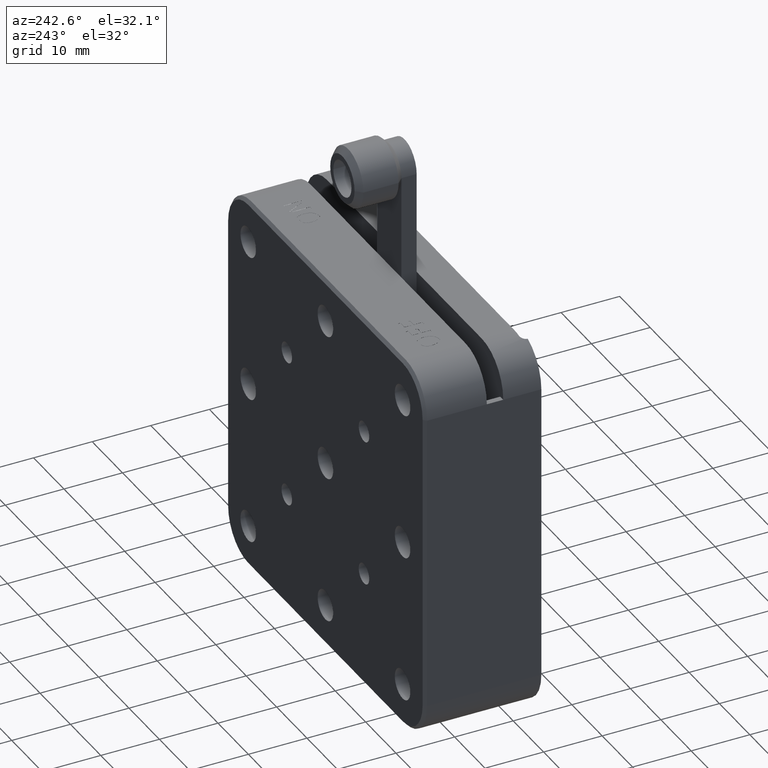
[diagram: clean part render]
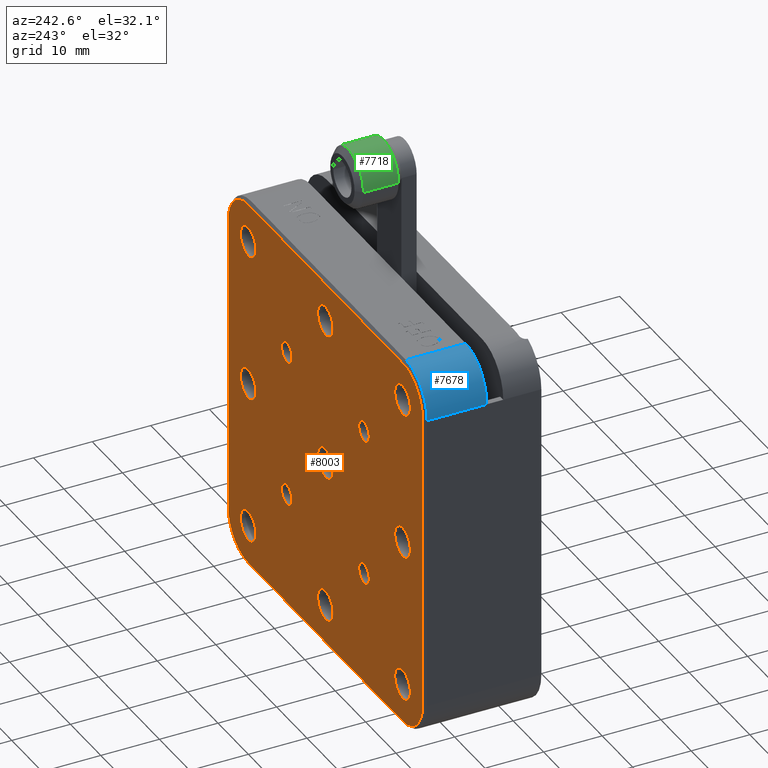
[diagram: same view with three faces highlighted in distinct colors, each labeled with its STEP entity id]
A machine part, auxiliary view with three faces highlighted in distinct colors.
Their STEP definitions:

[orange] entity #8003 — the highlighted planar face has unit normal (0, 1, 0).
#52 = EDGE_CURVE ( 'NONE', #6090, #90, #724, .T. ) ;
#71 = DIRECTION ( 'NONE',  ( 0.0000000000000000000, 0.0000000000000000000, 1.000000000000000000 ) ) ;
#80 = DIRECTION ( 'NONE',  ( -0.0000000000000000000, 1.000000000000000000, -0.0000000000000000000 ) ) ;
#90 = VERTEX_POINT ( 'NONE', #7771 ) ;
#121 = ORIENTED_EDGE ( 'NONE', *, *, #5553, .F. ) ;
#129 = CARTESIAN_POINT ( 'NONE',  ( -25.40000000000003800, 16.50000000000000000, -25.40000000000001600 ) ) ;
#146 = CARTESIAN_POINT ( 'NONE',  ( 31.99999999999997200, 16.50000000000000000, -25.50000000000001100 ) ) ;
#166 = DIRECTION ( 'NONE',  ( -1.000000000000000000, 0.0000000000000000000, 1.067522139062650300E-016 ) ) ;
#196 = AXIS2_PLACEMENT_3D ( 'NONE', #4144, #1546, #5966 ) ;
#198 = EDGE_CURVE ( 'NONE', #6858, #5558, #3324, .T. ) ;
#210 = AXIS2_PLACEMENT_3D ( 'NONE', #382, #1006, #3634 ) ;
#217 = EDGE_LOOP ( 'NONE', ( #738, #121 ) ) ;
#225 = CARTESIAN_POINT ( 'NONE',  ( -12.70000000000010400, 16.50000000000000000, 12.69999999999998200 ) ) ;
#274 = AXIS2_PLACEMENT_3D ( 'NONE', #225, #6002, #7257 ) ;
#279 = CARTESIAN_POINT ( 'NONE',  ( -32.00000000000008500, 16.50000000000000000, -25.50000000000000400 ) ) ;
#280 = DIRECTION ( 'NONE',  ( 0.0000000000000000000, 0.0000000000000000000, 1.000000000000000000 ) ) ;
#296 = CARTESIAN_POINT ( 'NONE',  ( 25.39999999999992000, 16.50000000000000000, 25.39999999999998100 ) ) ;
#328 = VERTEX_POINT ( 'NONE', #1307 ) ;
#364 = ORIENTED_EDGE ( 'NONE', *, *, #3986, .T. ) ;
#382 = CARTESIAN_POINT ( 'NONE',  ( -25.50000000000005300, 16.50000000000000000, -25.50000000000000400 ) ) ;
#446 = EDGE_CURVE ( 'NONE', #3851, #2931, #2193, .T. ) ;
#456 = ORIENTED_EDGE ( 'NONE', *, *, #5614, .F. ) ;
#467 = EDGE_CURVE ( 'NONE', #8148, #6967, #507, .T. ) ;
#486 = DIRECTION ( 'NONE',  ( -0.0000000000000000000, 1.000000000000000000, -0.0000000000000000000 ) ) ;
#507 = CIRCLE ( 'NONE', #7587, 2.552699999999998900 ) ;
#566 = AXIS2_PLACEMENT_3D ( 'NONE', #752, #3954, #3314 ) ;
#604 = FACE_BOUND ( 'NONE', #8067, .T. ) ;
#623 = CIRCLE ( 'NONE', #3479, 2.552699999999998000 ) ;
#628 = EDGE_CURVE ( 'NONE', #6967, #8148, #6264, .T. ) ;
#650 = DIRECTION ( 'NONE',  ( -0.0000000000000000000, 1.000000000000000000, -0.0000000000000000000 ) ) ;
#669 = DIRECTION ( 'NONE',  ( 0.0000000000000000000, 0.0000000000000000000, 1.000000000000000000 ) ) ;
#676 = VERTEX_POINT ( 'NONE', #6696 ) ;
#724 = CIRCLE ( 'NONE', #2908, 6.500000000000026600 ) ;
#738 = ORIENTED_EDGE ( 'NONE', *, *, #7808, .F. ) ;
#747 = DIRECTION ( 'NONE',  ( -0.0000000000000000000, 1.000000000000000000, -0.0000000000000000000 ) ) ;
#748 = AXIS2_PLACEMENT_3D ( 'NONE', #4109, #4751, #280 ) ;
#752 = CARTESIAN_POINT ( 'NONE',  ( -25.40000000000003800, 16.50000000000000000, -1.724140359010620200E-014 ) ) ;
#754 = CIRCLE ( 'NONE', #1783, 2.552699999999998000 ) ;
#817 = AXIS2_PLACEMENT_3D ( 'NONE', #6467, #3870, #669 ) ;
#839 = EDGE_CURVE ( 'NONE', #3858, #5742, #7034, .T. ) ;
#857 = DIRECTION ( 'NONE',  ( -0.0000000000000000000, 1.000000000000000000, -0.0000000000000000000 ) ) ;
#865 = VERTEX_POINT ( 'NONE', #2493 ) ;
#877 = CIRCLE ( 'NONE', #210, 6.500000000000026600 ) ;
#887 = EDGE_CURVE ( 'NONE', #4962, #6275, #3589, .T. ) ;
#891 = ORIENTED_EDGE ( 'NONE', *, *, #198, .F. ) ;
#897 = FACE_BOUND ( 'NONE', #2042, .T. ) ;
#899 = CARTESIAN_POINT ( 'NONE',  ( -25.40000000000003800, 16.50000000000000000, -1.724140359010620200E-014 ) ) ;
#902 = EDGE_CURVE ( 'NONE', #7638, #3858, #5284, .T. ) ;
#906 = CIRCLE ( 'NONE', #6653, 1.727199999999998100 ) ;
#921 = CARTESIAN_POINT ( 'NONE',  ( -25.50000000000005300, 16.50000000000000000, 32.00000000000003600 ) ) ;
#952 = EDGE_CURVE ( 'NONE', #7269, #3722, #6943, .T. ) ;
#1006 = DIRECTION ( 'NONE',  ( 0.0000000000000000000, 1.000000000000000000, 0.0000000000000000000 ) ) ;
#1037 = CIRCLE ( 'NONE', #2228, 2.552699999999998000 ) ;
#1051 = EDGE_CURVE ( 'NONE', #328, #3610, #5567, .T. ) ;
#1131 = DIRECTION ( 'NONE',  ( 0.0000000000000000000, 0.0000000000000000000, 1.000000000000000000 ) ) ;
#1173 = CARTESIAN_POINT ( 'NONE',  ( -12.70000000000010400, 16.50000000000000000, -14.42720000000001500 ) ) ;
#1192 = DIRECTION ( 'NONE',  ( -0.0000000000000000000, 1.000000000000000000, -0.0000000000000000000 ) ) ;
#1193 = AXIS2_PLACEMENT_3D ( 'NONE', #899, #5344, #3466 ) ;
#1212 = DIRECTION ( 'NONE',  ( -0.0000000000000000000, 1.000000000000000000, -0.0000000000000000000 ) ) ;
#1216 = DIRECTION ( 'NONE',  ( 0.0000000000000000000, 1.000000000000000000, 0.0000000000000000000 ) ) ;
#1248 = CARTESIAN_POINT ( 'NONE',  ( -25.50000000000005300, 16.50000000000000000, -32.00000000000002800 ) ) ;
#1307 = CARTESIAN_POINT ( 'NONE',  ( -5.984789395918149000E-014, 16.50000000000000000, -22.84730000000001800 ) ) ;
#1329 = AXIS2_PLACEMENT_3D ( 'NONE', #5118, #857, #7308 ) ;
#1345 = DIRECTION ( 'NONE',  ( 0.0000000000000000000, 0.0000000000000000000, 1.000000000000000000 ) ) ;
#1371 = CIRCLE ( 'NONE', #4855, 6.500000000000030200 ) ;
#1372 = ORIENTED_EDGE ( 'NONE', *, *, #3824, .T. ) ;
#1383 = CARTESIAN_POINT ( 'NONE',  ( 25.49999999999995000, 16.50000000000000000, 32.00000000000002800 ) ) ;
#1416 = EDGE_LOOP ( 'NONE', ( #5110, #6143 ) ) ;
#1420 = EDGE_CURVE ( 'NONE', #8116, #3532, #5275, .T. ) ;
#1439 = DIRECTION ( 'NONE',  ( 0.0000000000000000000, 0.0000000000000000000, 1.000000000000000000 ) ) ;
#1445 = AXIS2_PLACEMENT_3D ( 'NONE', #5084, #1212, #3811 ) ;
#1446 = EDGE_CURVE ( 'NONE', #3610, #328, #2270, .T. ) ;
#1452 = LINE ( 'NONE', #6629, #4632 ) ;
#1458 = CARTESIAN_POINT ( 'NONE',  ( 25.39999999999992000, 16.50000000000000000, -1.724140359010620200E-014 ) ) ;
#1492 = EDGE_CURVE ( 'NONE', #3969, #865, #8146, .T. ) ;
#1514 = FACE_BOUND ( 'NONE', #5134, .T. ) ;
#1546 = DIRECTION ( 'NONE',  ( -0.0000000000000000000, 1.000000000000000000, -0.0000000000000000000 ) ) ;
#1559 = VERTEX_POINT ( 'NONE', #4591 ) ;
#1588 = EDGE_CURVE ( 'NONE', #676, #1631, #6272, .T. ) ;
#1631 = VERTEX_POINT ( 'NONE', #7602 ) ;
#1700 = ORIENTED_EDGE ( 'NONE', *, *, #1446, .F. ) ;
#1777 = VERTEX_POINT ( 'NONE', #6481 ) ;
#1783 = AXIS2_PLACEMENT_3D ( 'NONE', #1458, #4626, #7106 ) ;
#1829 = DIRECTION ( 'NONE',  ( -0.0000000000000000000, 1.000000000000000000, -0.0000000000000000000 ) ) ;
#1873 = CARTESIAN_POINT ( 'NONE',  ( 25.49999999999995000, 16.50000000000000000, 25.49999999999999300 ) ) ;
#1884 = AXIS2_PLACEMENT_3D ( 'NONE', #8262, #650, #5099 ) ;
#1893 = EDGE_CURVE ( 'NONE', #7220, #4733, #7442, .T. ) ;
#1897 = VECTOR ( 'NONE', #5533, 1000.000000000000000 ) ;
#1908 = DIRECTION ( 'NONE',  ( 0.0000000000000000000, 0.0000000000000000000, 1.000000000000000000 ) ) ;
#1915 = FACE_BOUND ( 'NONE', #8169, .T. ) ;
#1932 = DIRECTION ( 'NONE',  ( -0.0000000000000000000, 1.000000000000000000, -0.0000000000000000000 ) ) ;
#1956 = CARTESIAN_POINT ( 'NONE',  ( -25.40000000000003800, 16.50000000000000000, -27.95270000000001400 ) ) ;
#1987 = CARTESIAN_POINT ( 'NONE',  ( -12.70000000000010400, 16.50000000000000000, 14.42719999999998000 ) ) ;
#2009 = CIRCLE ( 'NONE', #1193, 2.552699999999998000 ) ;
#2039 = DIRECTION ( 'NONE',  ( 0.0000000000000000000, 0.0000000000000000000, 1.000000000000000000 ) ) ;
#2042 = EDGE_LOOP ( 'NONE', ( #4523, #7229 ) ) ;
#2060 = CARTESIAN_POINT ( 'NONE',  ( 25.39999999999992000, 16.50000000000000000, 25.39999999999998100 ) ) ;
#2080 = DIRECTION ( 'NONE',  ( 0.0000000000000000000, 0.0000000000000000000, 1.000000000000000000 ) ) ;
#2129 = ORIENTED_EDGE ( 'NONE', *, *, #5904, .F. ) ;
#2143 = AXIS2_PLACEMENT_3D ( 'NONE', #6788, #2544, #3907 ) ;
#2193 = CIRCLE ( 'NONE', #7033, 1.727199999999998100 ) ;
#2213 = CIRCLE ( 'NONE', #7556, 2.552699999999998000 ) ;
#2220 = CIRCLE ( 'NONE', #817, 1.727199999999998100 ) ;
#2228 = AXIS2_PLACEMENT_3D ( 'NONE', #129, #6492, #71 ) ;
#2238 = CARTESIAN_POINT ( 'NONE',  ( 25.39999999999992000, 16.50000000000000000, -2.552700000000015300 ) ) ;
#2270 = CIRCLE ( 'NONE', #5685, 2.552699999999998000 ) ;
#2277 = FACE_BOUND ( 'NONE', #3369, .T. ) ;
#2396 = CARTESIAN_POINT ( 'NONE',  ( 25.39999999999992000, 16.50000000000000000, 22.84729999999998300 ) ) ;
#2402 = VERTEX_POINT ( 'NONE', #6717 ) ;
#2453 = ORIENTED_EDGE ( 'NONE', *, *, #3143, .T. ) ;
#2485 = ORIENTED_EDGE ( 'NONE', *, *, #952, .F. ) ;
#2493 = CARTESIAN_POINT ( 'NONE',  ( -25.40000000000003800, 16.50000000000000000, -2.552700000000015300 ) ) ;
#2544 = DIRECTION ( 'NONE',  ( -0.0000000000000000000, 1.000000000000000000, -0.0000000000000000000 ) ) ;
#2562 = ORIENTED_EDGE ( 'NONE', *, *, #5683, .F. ) ;
#2574 = CARTESIAN_POINT ( 'NONE',  ( 12.69999999999998500, 16.50000000000000000, 12.69999999999998200 ) ) ;
#2604 = AXIS2_PLACEMENT_3D ( 'NONE', #6878, #3070, #5599 ) ;
#2650 = CARTESIAN_POINT ( 'NONE',  ( -5.984789395918149000E-014, 16.50000000000000000, -1.724140359010620200E-014 ) ) ;
#2674 = LINE ( 'NONE', #3011, #1897 ) ;
#2742 = CARTESIAN_POINT ( 'NONE',  ( 31.99999999999997200, 16.50000000000000000, 25.49999999999999300 ) ) ;
#2765 = PLANE ( 'NONE',  #3345 ) ;
#2878 = CIRCLE ( 'NONE', #274, 1.727199999999998100 ) ;
#2908 = AXIS2_PLACEMENT_3D ( 'NONE', #4743, #5321, #1439 ) ;
#2931 = VERTEX_POINT ( 'NONE', #3751 ) ;
#2952 = DIRECTION ( 'NONE',  ( -0.0000000000000000000, 1.000000000000000000, -0.0000000000000000000 ) ) ;
#3011 = CARTESIAN_POINT ( 'NONE',  ( 31.99999999999997200, 16.50000000000000000, -25.50000000000001100 ) ) ;
#3070 = DIRECTION ( 'NONE',  ( -0.0000000000000000000, 1.000000000000000000, -0.0000000000000000000 ) ) ;
#3079 = CIRCLE ( 'NONE', #6798, 2.552699999999998000 ) ;
#3131 = DIRECTION ( 'NONE',  ( -0.0000000000000000000, 1.000000000000000000, -0.0000000000000000000 ) ) ;
#3142 = DIRECTION ( 'NONE',  ( 0.0000000000000000000, 0.0000000000000000000, 1.000000000000000000 ) ) ;
#3143 = EDGE_CURVE ( 'NONE', #6871, #5770, #877, .T. ) ;
#3191 = DIRECTION ( 'NONE',  ( 0.0000000000000000000, 0.0000000000000000000, 1.000000000000000000 ) ) ;
#3192 = CARTESIAN_POINT ( 'NONE',  ( -5.953527837076314500E-014, 16.50000000000000000, -2.552700000000016600 ) ) ;
#3199 = CARTESIAN_POINT ( 'NONE',  ( 12.69999999999998500, 16.50000000000000000, -12.70000000000001700 ) ) ;
#3261 = AXIS2_PLACEMENT_3D ( 'NONE', #296, #7210, #6027 ) ;
#3304 = ORIENTED_EDGE ( 'NONE', *, *, #1051, .F. ) ;
#3314 = DIRECTION ( 'NONE',  ( 0.0000000000000000000, 0.0000000000000000000, 1.000000000000000000 ) ) ;
#3324 = CIRCLE ( 'NONE', #4203, 1.727199999999998100 ) ;
#3328 = CARTESIAN_POINT ( 'NONE',  ( -25.40000000000003800, 16.50000000000000000, 2.552699999999980700 ) ) ;
#3341 = ORIENTED_EDGE ( 'NONE', *, *, #4313, .F. ) ;
#3345 = AXIS2_PLACEMENT_3D ( 'NONE', #7879, #4747, #6583 ) ;
#3369 = EDGE_LOOP ( 'NONE', ( #4221, #4186 ) ) ;
#3388 = DIRECTION ( 'NONE',  ( 0.0000000000000000000, 0.0000000000000000000, 1.000000000000000000 ) ) ;
#3466 = DIRECTION ( 'NONE',  ( 0.0000000000000000000, 0.0000000000000000000, 1.000000000000000000 ) ) ;
#3479 = AXIS2_PLACEMENT_3D ( 'NONE', #2060, #747, #2080 ) ;
#3532 = VERTEX_POINT ( 'NONE', #4082 ) ;
#3571 = CARTESIAN_POINT ( 'NONE',  ( 25.39999999999992000, 16.50000000000000000, -25.40000000000001600 ) ) ;
#3582 = ORIENTED_EDGE ( 'NONE', *, *, #902, .T. ) ;
#3589 = CIRCLE ( 'NONE', #5005, 2.552699999999998000 ) ;
#3610 = VERTEX_POINT ( 'NONE', #6144 ) ;
#3634 = DIRECTION ( 'NONE',  ( 0.0000000000000000000, 0.0000000000000000000, 1.000000000000000000 ) ) ;
#3660 = EDGE_CURVE ( 'NONE', #2931, #3851, #4555, .T. ) ;
#3677 = CARTESIAN_POINT ( 'NONE',  ( 25.39999999999992000, 16.50000000000000000, 27.95269999999997900 ) ) ;
#3688 = FACE_BOUND ( 'NONE', #6667, .T. ) ;
#3696 = CARTESIAN_POINT ( 'NONE',  ( -5.984789395918149000E-014, 16.50000000000000000, -25.40000000000001600 ) ) ;
#3722 = VERTEX_POINT ( 'NONE', #5328 ) ;
#3751 = CARTESIAN_POINT ( 'NONE',  ( -12.70000000000010400, 16.50000000000000000, -10.97280000000001900 ) ) ;
#3775 = CARTESIAN_POINT ( 'NONE',  ( -25.40000000000003800, 16.50000000000000000, 25.39999999999998100 ) ) ;
#3811 = DIRECTION ( 'NONE',  ( 0.0000000000000000000, 0.0000000000000000000, 1.000000000000000000 ) ) ;
#3816 = AXIS2_PLACEMENT_3D ( 'NONE', #2574, #6529, #3388 ) ;
#3824 = EDGE_CURVE ( 'NONE', #7000, #7638, #1371, .T. ) ;
#3851 = VERTEX_POINT ( 'NONE', #1173 ) ;
#3852 = ORIENTED_EDGE ( 'NONE', *, *, #1420, .F. ) ;
#3858 = VERTEX_POINT ( 'NONE', #1383 ) ;
#3870 = DIRECTION ( 'NONE',  ( -0.0000000000000000000, 1.000000000000000000, -0.0000000000000000000 ) ) ;
#3892 = FACE_BOUND ( 'NONE', #7837, .T. ) ;
#3907 = DIRECTION ( 'NONE',  ( 0.0000000000000000000, 0.0000000000000000000, 1.000000000000000000 ) ) ;
#3933 = LINE ( 'NONE', #6043, #4513 ) ;
#3942 = ORIENTED_EDGE ( 'NONE', *, *, #7148, .F. ) ;
#3954 = DIRECTION ( 'NONE',  ( -0.0000000000000000000, 1.000000000000000000, -0.0000000000000000000 ) ) ;
#3969 = VERTEX_POINT ( 'NONE', #3328 ) ;
#3986 = EDGE_CURVE ( 'NONE', #90, #6871, #3933, .T. ) ;
#4082 = CARTESIAN_POINT ( 'NONE',  ( -25.40000000000003800, 16.50000000000000000, 27.95269999999997900 ) ) ;
#4092 = CARTESIAN_POINT ( 'NONE',  ( -5.953527837076314500E-014, 16.50000000000000000, 22.84729999999998300 ) ) ;
#4109 = CARTESIAN_POINT ( 'NONE',  ( -5.984789395918149000E-014, 16.50000000000000000, 25.39999999999998100 ) ) ;
#4144 = CARTESIAN_POINT ( 'NONE',  ( -5.984789395918149000E-014, 16.50000000000000000, -1.724140359010620200E-014 ) ) ;
#4186 = ORIENTED_EDGE ( 'NONE', *, *, #446, .F. ) ;
#4203 = AXIS2_PLACEMENT_3D ( 'NONE', #4352, #1829, #4292 ) ;
#4221 = ORIENTED_EDGE ( 'NONE', *, *, #3660, .F. ) ;
#4292 = DIRECTION ( 'NONE',  ( 0.0000000000000000000, 0.0000000000000000000, 1.000000000000000000 ) ) ;
#4313 = EDGE_CURVE ( 'NONE', #3722, #7269, #3079, .T. ) ;
#4314 = CARTESIAN_POINT ( 'NONE',  ( 25.39999999999992000, 16.50000000000000000, -1.724140359010620200E-014 ) ) ;
#4352 = CARTESIAN_POINT ( 'NONE',  ( -12.70000000000010400, 16.50000000000000000, 12.69999999999998200 ) ) ;
#4356 = VERTEX_POINT ( 'NONE', #5646 ) ;
#4379 = CARTESIAN_POINT ( 'NONE',  ( -5.984789395918149000E-014, 16.50000000000000000, 2.552699999999981500 ) ) ;
#4394 = CIRCLE ( 'NONE', #3816, 1.727199999999998100 ) ;
#4513 = VECTOR ( 'NONE', #166, 1000.000000000000000 ) ;
#4517 = CARTESIAN_POINT ( 'NONE',  ( -12.70000000000010400, 16.50000000000000000, -12.70000000000001700 ) ) ;
#4523 = ORIENTED_EDGE ( 'NONE', *, *, #1492, .F. ) ;
#4536 = EDGE_CURVE ( 'NONE', #4356, #7276, #7976, .T. ) ;
#4555 = CIRCLE ( 'NONE', #5963, 1.727199999999998100 ) ;
#4576 = ORIENTED_EDGE ( 'NONE', *, *, #5002, .T. ) ;
#4591 = CARTESIAN_POINT ( 'NONE',  ( 12.69999999999998500, 16.50000000000000000, -10.97280000000001900 ) ) ;
#4626 = DIRECTION ( 'NONE',  ( -0.0000000000000000000, 1.000000000000000000, -0.0000000000000000000 ) ) ;
#4632 = VECTOR ( 'NONE', #7219, 1000.000000000000000 ) ;
#4699 = DIRECTION ( 'NONE',  ( 1.000000000000000000, 0.0000000000000000000, -1.067522139062650300E-016 ) ) ;
#4723 = CIRCLE ( 'NONE', #2143, 2.552699999999998000 ) ;
#4733 = VERTEX_POINT ( 'NONE', #2396 ) ;
#4743 = CARTESIAN_POINT ( 'NONE',  ( 25.49999999999995000, 16.50000000000000000, -25.50000000000001100 ) ) ;
#4747 = DIRECTION ( 'NONE',  ( 0.0000000000000000000, 1.000000000000000000, 0.0000000000000000000 ) ) ;
#4751 = DIRECTION ( 'NONE',  ( -0.0000000000000000000, 1.000000000000000000, -0.0000000000000000000 ) ) ;
#4855 = AXIS2_PLACEMENT_3D ( 'NONE', #5140, #6244, #4990 ) ;
#4916 = CARTESIAN_POINT ( 'NONE',  ( -5.984789395918149000E-014, 16.50000000000000000, 25.39999999999998100 ) ) ;
#4918 = EDGE_LOOP ( 'NONE', ( #6497, #456 ) ) ;
#4962 = VERTEX_POINT ( 'NONE', #5622 ) ;
#4990 = DIRECTION ( 'NONE',  ( 0.0000000000000000000, 0.0000000000000000000, 1.000000000000000000 ) ) ;
#5002 = EDGE_CURVE ( 'NONE', #5742, #6090, #2674, .T. ) ;
#5005 = AXIS2_PLACEMENT_3D ( 'NONE', #4314, #486, #1131 ) ;
#5057 = CARTESIAN_POINT ( 'NONE',  ( -32.00000000000008500, 16.50000000000000000, 25.50000000000000000 ) ) ;
#5084 = CARTESIAN_POINT ( 'NONE',  ( -25.40000000000003800, 16.50000000000000000, 25.39999999999998100 ) ) ;
#5099 = DIRECTION ( 'NONE',  ( 0.0000000000000000000, 0.0000000000000000000, 1.000000000000000000 ) ) ;
#5110 = ORIENTED_EDGE ( 'NONE', *, *, #1893, .F. ) ;
#5118 = CARTESIAN_POINT ( 'NONE',  ( 25.39999999999992000, 16.50000000000000000, -25.40000000000001600 ) ) ;
#5134 = EDGE_LOOP ( 'NONE', ( #5935, #5916 ) ) ;
#5140 = CARTESIAN_POINT ( 'NONE',  ( -25.50000000000005300, 16.50000000000000000, 25.50000000000000000 ) ) ;
#5177 = FACE_BOUND ( 'NONE', #217, .T. ) ;
#5240 = EDGE_LOOP ( 'NONE', ( #2129, #3852 ) ) ;
#5275 = CIRCLE ( 'NONE', #1445, 2.552699999999998000 ) ;
#5283 = CARTESIAN_POINT ( 'NONE',  ( 12.69999999999998500, 16.50000000000000000, 14.42719999999998000 ) ) ;
#5284 = LINE ( 'NONE', #8118, #6069 ) ;
#5321 = DIRECTION ( 'NONE',  ( 0.0000000000000000000, 1.000000000000000000, 0.0000000000000000000 ) ) ;
#5328 = CARTESIAN_POINT ( 'NONE',  ( -5.984789395918149000E-014, 16.50000000000000000, 27.95269999999997900 ) ) ;
#5344 = DIRECTION ( 'NONE',  ( -0.0000000000000000000, 1.000000000000000000, -0.0000000000000000000 ) ) ;
#5361 = FACE_BOUND ( 'NONE', #5240, .T. ) ;
#5484 = DIRECTION ( 'NONE',  ( -0.0000000000000000000, 1.000000000000000000, -0.0000000000000000000 ) ) ;
#5515 = EDGE_LOOP ( 'NONE', ( #8170, #364, #2453, #6867, #1372, #3582, #5771, #4576 ) ) ;
#5533 = DIRECTION ( 'NONE',  ( 0.0000000000000000000, 0.0000000000000000000, -1.000000000000000000 ) ) ;
#5544 = ORIENTED_EDGE ( 'NONE', *, *, #1588, .F. ) ;
#5548 = EDGE_LOOP ( 'NONE', ( #3304, #1700 ) ) ;
#5553 = EDGE_CURVE ( 'NONE', #2402, #1559, #2220, .T. ) ;
#5558 = VERTEX_POINT ( 'NONE', #1987 ) ;
#5563 = FACE_OUTER_BOUND ( 'NONE', #5515, .T. ) ;
#5567 = CIRCLE ( 'NONE', #2604, 2.552699999999998000 ) ;
#5599 = DIRECTION ( 'NONE',  ( 0.0000000000000000000, 0.0000000000000000000, 1.000000000000000000 ) ) ;
#5614 = EDGE_CURVE ( 'NONE', #6275, #4962, #754, .T. ) ;
#5622 = CARTESIAN_POINT ( 'NONE',  ( 25.39999999999992000, 16.50000000000000000, 2.552699999999980700 ) ) ;
#5630 = DIRECTION ( 'NONE',  ( -0.0000000000000000000, 1.000000000000000000, -0.0000000000000000000 ) ) ;
#5646 = CARTESIAN_POINT ( 'NONE',  ( 12.69999999999998500, 16.50000000000000000, 10.97279999999998300 ) ) ;
#5683 = EDGE_CURVE ( 'NONE', #7081, #1777, #1037, .T. ) ;
#5685 = AXIS2_PLACEMENT_3D ( 'NONE', #3696, #5630, #8115 ) ;
#5742 = VERTEX_POINT ( 'NONE', #2742 ) ;
#5751 = ORIENTED_EDGE ( 'NONE', *, *, #628, .F. ) ;
#5755 = EDGE_CURVE ( 'NONE', #5770, #7000, #1452, .T. ) ;
#5770 = VERTEX_POINT ( 'NONE', #279 ) ;
#5771 = ORIENTED_EDGE ( 'NONE', *, *, #839, .T. ) ;
#5800 = CARTESIAN_POINT ( 'NONE',  ( -12.70000000000010400, 16.50000000000000000, -12.70000000000001700 ) ) ;
#5829 = DIRECTION ( 'NONE',  ( -0.0000000000000000000, 1.000000000000000000, -0.0000000000000000000 ) ) ;
#5904 = EDGE_CURVE ( 'NONE', #3532, #8116, #2213, .T. ) ;
#5916 = ORIENTED_EDGE ( 'NONE', *, *, #4536, .F. ) ;
#5935 = ORIENTED_EDGE ( 'NONE', *, *, #7526, .F. ) ;
#5963 = AXIS2_PLACEMENT_3D ( 'NONE', #5800, #5829, #2039 ) ;
#5965 = FACE_BOUND ( 'NONE', #6581, .T. ) ;
#5966 = DIRECTION ( 'NONE',  ( 0.0000000000000000000, 0.0000000000000000000, 1.000000000000000000 ) ) ;
#6002 = DIRECTION ( 'NONE',  ( -0.0000000000000000000, 1.000000000000000000, -0.0000000000000000000 ) ) ;
#6027 = DIRECTION ( 'NONE',  ( 0.0000000000000000000, 0.0000000000000000000, 1.000000000000000000 ) ) ;
#6043 = CARTESIAN_POINT ( 'NONE',  ( -25.50000000000005300, 16.50000000000000000, -32.00000000000002800 ) ) ;
#6069 = VECTOR ( 'NONE', #4699, 1000.000000000000000 ) ;
#6073 = CIRCLE ( 'NONE', #7614, 2.552699999999998000 ) ;
#6090 = VERTEX_POINT ( 'NONE', #146 ) ;
#6115 = DIRECTION ( 'NONE',  ( 0.0000000000000000000, 0.0000000000000000000, 1.000000000000000000 ) ) ;
#6143 = ORIENTED_EDGE ( 'NONE', *, *, #6646, .F. ) ;
#6144 = CARTESIAN_POINT ( 'NONE',  ( -5.953527837076314500E-014, 16.50000000000000000, -27.95270000000001400 ) ) ;
#6150 = FACE_BOUND ( 'NONE', #1416, .T. ) ;
#6244 = DIRECTION ( 'NONE',  ( 0.0000000000000000000, 1.000000000000000000, 0.0000000000000000000 ) ) ;
#6259 = AXIS2_PLACEMENT_3D ( 'NONE', #1873, #1216, #8152 ) ;
#6264 = CIRCLE ( 'NONE', #196, 2.552699999999998900 ) ;
#6272 = CIRCLE ( 'NONE', #1329, 2.552699999999998000 ) ;
#6275 = VERTEX_POINT ( 'NONE', #2238 ) ;
#6331 = EDGE_CURVE ( 'NONE', #1777, #7081, #4723, .T. ) ;
#6365 = FACE_BOUND ( 'NONE', #4918, .T. ) ;
#6467 = CARTESIAN_POINT ( 'NONE',  ( 12.69999999999998500, 16.50000000000000000, -12.70000000000001700 ) ) ;
#6481 = CARTESIAN_POINT ( 'NONE',  ( -25.40000000000003800, 16.50000000000000000, -22.84730000000001800 ) ) ;
#6492 = DIRECTION ( 'NONE',  ( -0.0000000000000000000, 1.000000000000000000, -0.0000000000000000000 ) ) ;
#6497 = ORIENTED_EDGE ( 'NONE', *, *, #887, .F. ) ;
#6529 = DIRECTION ( 'NONE',  ( -0.0000000000000000000, 1.000000000000000000, -0.0000000000000000000 ) ) ;
#6581 = EDGE_LOOP ( 'NONE', ( #3341, #2485 ) ) ;
#6583 = DIRECTION ( 'NONE',  ( 0.0000000000000000000, -0.0000000000000000000, 1.000000000000000000 ) ) ;
#6629 = CARTESIAN_POINT ( 'NONE',  ( -32.00000000000008500, 16.50000000000000000, 25.50000000000000000 ) ) ;
#6646 = EDGE_CURVE ( 'NONE', #4733, #7220, #623, .T. ) ;
#6653 = AXIS2_PLACEMENT_3D ( 'NONE', #3199, #1932, #3142 ) ;
#6667 = EDGE_LOOP ( 'NONE', ( #3942, #5544 ) ) ;
#6696 = CARTESIAN_POINT ( 'NONE',  ( 25.39999999999992000, 16.50000000000000000, -27.95270000000001400 ) ) ;
#6714 = ORIENTED_EDGE ( 'NONE', *, *, #467, .F. ) ;
#6717 = CARTESIAN_POINT ( 'NONE',  ( 12.69999999999998500, 16.50000000000000000, -14.42720000000001500 ) ) ;
#6788 = CARTESIAN_POINT ( 'NONE',  ( -25.40000000000003800, 16.50000000000000000, -25.40000000000001600 ) ) ;
#6798 = AXIS2_PLACEMENT_3D ( 'NONE', #4916, #5484, #3191 ) ;
#6858 = VERTEX_POINT ( 'NONE', #8222 ) ;
#6867 = ORIENTED_EDGE ( 'NONE', *, *, #5755, .T. ) ;
#6871 = VERTEX_POINT ( 'NONE', #1248 ) ;
#6878 = CARTESIAN_POINT ( 'NONE',  ( -5.984789395918149000E-014, 16.50000000000000000, -25.40000000000001600 ) ) ;
#6943 = CIRCLE ( 'NONE', #748, 2.552699999999998000 ) ;
#6967 = VERTEX_POINT ( 'NONE', #3192 ) ;
#7000 = VERTEX_POINT ( 'NONE', #5057 ) ;
#7033 = AXIS2_PLACEMENT_3D ( 'NONE', #4517, #1192, #1908 ) ;
#7034 = CIRCLE ( 'NONE', #6259, 6.500000000000023100 ) ;
#7081 = VERTEX_POINT ( 'NONE', #1956 ) ;
#7106 = DIRECTION ( 'NONE',  ( 0.0000000000000000000, 0.0000000000000000000, 1.000000000000000000 ) ) ;
#7148 = EDGE_CURVE ( 'NONE', #1631, #676, #6073, .T. ) ;
#7210 = DIRECTION ( 'NONE',  ( -0.0000000000000000000, 1.000000000000000000, -0.0000000000000000000 ) ) ;
#7219 = DIRECTION ( 'NONE',  ( 0.0000000000000000000, 0.0000000000000000000, 1.000000000000000000 ) ) ;
#7220 = VERTEX_POINT ( 'NONE', #3677 ) ;
#7229 = ORIENTED_EDGE ( 'NONE', *, *, #7978, .F. ) ;
#7244 = ORIENTED_EDGE ( 'NONE', *, *, #7677, .F. ) ;
#7257 = DIRECTION ( 'NONE',  ( 0.0000000000000000000, 0.0000000000000000000, 1.000000000000000000 ) ) ;
#7269 = VERTEX_POINT ( 'NONE', #4092 ) ;
#7276 = VERTEX_POINT ( 'NONE', #5283 ) ;
#7308 = DIRECTION ( 'NONE',  ( 0.0000000000000000000, 0.0000000000000000000, 1.000000000000000000 ) ) ;
#7442 = CIRCLE ( 'NONE', #3261, 2.552699999999998000 ) ;
#7526 = EDGE_CURVE ( 'NONE', #7276, #4356, #4394, .T. ) ;
#7556 = AXIS2_PLACEMENT_3D ( 'NONE', #3775, #3131, #8211 ) ;
#7587 = AXIS2_PLACEMENT_3D ( 'NONE', #2650, #80, #1345 ) ;
#7602 = CARTESIAN_POINT ( 'NONE',  ( 25.39999999999992000, 16.50000000000000000, -22.84730000000001800 ) ) ;
#7614 = AXIS2_PLACEMENT_3D ( 'NONE', #3571, #2952, #6115 ) ;
#7638 = VERTEX_POINT ( 'NONE', #921 ) ;
#7677 = EDGE_CURVE ( 'NONE', #5558, #6858, #2878, .T. ) ;
#7755 = ORIENTED_EDGE ( 'NONE', *, *, #6331, .F. ) ;
#7771 = CARTESIAN_POINT ( 'NONE',  ( 25.49999999999995000, 16.50000000000000000, -32.00000000000003600 ) ) ;
#7808 = EDGE_CURVE ( 'NONE', #1559, #2402, #906, .T. ) ;
#7837 = EDGE_LOOP ( 'NONE', ( #7244, #891 ) ) ;
#7879 = CARTESIAN_POINT ( 'NONE',  ( -5.984789395918149000E-014, 16.50000000000000000, -1.724140359010620200E-014 ) ) ;
#7976 = CIRCLE ( 'NONE', #1884, 1.727199999999998100 ) ;
#7978 = EDGE_CURVE ( 'NONE', #865, #3969, #2009, .T. ) ;
#8003 = ADVANCED_FACE ( 'NONE', ( #5563, #2277, #5177, #1514, #3892, #1915, #8042, #897, #5965, #5361, #6150, #6365, #3688, #604 ), #2765, .T. ) ;
#8022 = CARTESIAN_POINT ( 'NONE',  ( -25.40000000000003800, 16.50000000000000000, 22.84729999999998300 ) ) ;
#8042 = FACE_BOUND ( 'NONE', #5548, .T. ) ;
#8067 = EDGE_LOOP ( 'NONE', ( #6714, #5751 ) ) ;
#8115 = DIRECTION ( 'NONE',  ( 0.0000000000000000000, 0.0000000000000000000, 1.000000000000000000 ) ) ;
#8116 = VERTEX_POINT ( 'NONE', #8022 ) ;
#8118 = CARTESIAN_POINT ( 'NONE',  ( 25.49999999999995000, 16.50000000000000000, 32.00000000000002800 ) ) ;
#8146 = CIRCLE ( 'NONE', #566, 2.552699999999998000 ) ;
#8148 = VERTEX_POINT ( 'NONE', #4379 ) ;
#8152 = DIRECTION ( 'NONE',  ( 0.0000000000000000000, 0.0000000000000000000, 1.000000000000000000 ) ) ;
#8169 = EDGE_LOOP ( 'NONE', ( #7755, #2562 ) ) ;
#8170 = ORIENTED_EDGE ( 'NONE', *, *, #52, .T. ) ;
#8211 = DIRECTION ( 'NONE',  ( 0.0000000000000000000, 0.0000000000000000000, 1.000000000000000000 ) ) ;
#8222 = CARTESIAN_POINT ( 'NONE',  ( -12.70000000000010400, 16.50000000000000000, 10.97279999999998300 ) ) ;
#8262 = CARTESIAN_POINT ( 'NONE',  ( 12.69999999999998500, 16.50000000000000000, 12.69999999999998200 ) ) ;

[blue] entity #7678 — the highlighted cylindrical surface (partial cylindrical patch) has radius 7 mm, axis along (0, -1, 0).
#57 = VERTEX_POINT ( 'NONE', #7156 ) ;
#245 = CARTESIAN_POINT ( 'NONE',  ( -25.50000000000005300, 16.50000000000000000, 25.50000000000000000 ) ) ;
#805 = VERTEX_POINT ( 'NONE', #1180 ) ;
#999 = DIRECTION ( 'NONE',  ( 0.0000000000000000000, -1.000000000000000000, 0.0000000000000000000 ) ) ;
#1111 = AXIS2_PLACEMENT_3D ( 'NONE', #7984, #999, #6678 ) ;
#1180 = CARTESIAN_POINT ( 'NONE',  ( -32.50000000000005700, 5.800000000000002500, 25.50000000000000000 ) ) ;
#1257 = DIRECTION ( 'NONE',  ( 0.0000000000000000000, 0.0000000000000000000, 1.000000000000000000 ) ) ;
#2029 = EDGE_CURVE ( 'NONE', #6313, #57, #7541, .T. ) ;
#2169 = EDGE_CURVE ( 'NONE', #6313, #4461, #3370, .T. ) ;
#2260 = EDGE_LOOP ( 'NONE', ( #5467, #2502, #4284, #3456 ) ) ;
#2502 = ORIENTED_EDGE ( 'NONE', *, *, #2029, .T. ) ;
#2531 = AXIS2_PLACEMENT_3D ( 'NONE', #245, #4738, #4682 ) ;
#3174 = EDGE_CURVE ( 'NONE', #805, #57, #5429, .T. ) ;
#3276 = EDGE_CURVE ( 'NONE', #4461, #805, #7885, .T. ) ;
#3370 = LINE ( 'NONE', #7730, #8014 ) ;
#3456 = ORIENTED_EDGE ( 'NONE', *, *, #3276, .F. ) ;
#3510 = CARTESIAN_POINT ( 'NONE',  ( -25.50000000000005300, 5.800000000000002500, 32.50000000000000000 ) ) ;
#4217 = AXIS2_PLACEMENT_3D ( 'NONE', #8131, #7574, #1257 ) ;
#4284 = ORIENTED_EDGE ( 'NONE', *, *, #3174, .F. ) ;
#4461 = VERTEX_POINT ( 'NONE', #3510 ) ;
#4682 = DIRECTION ( 'NONE',  ( 0.0000000000000000000, 0.0000000000000000000, -1.000000000000000000 ) ) ;
#4738 = DIRECTION ( 'NONE',  ( 0.0000000000000000000, -1.000000000000000000, 0.0000000000000000000 ) ) ;
#5345 = VECTOR ( 'NONE', #6088, 1000.000000000000000 ) ;
#5429 = LINE ( 'NONE', #5475, #5345 ) ;
#5467 = ORIENTED_EDGE ( 'NONE', *, *, #2169, .F. ) ;
#5475 = CARTESIAN_POINT ( 'NONE',  ( -32.50000000000005700, 16.50000000000000000, 25.50000000000000000 ) ) ;
#6088 = DIRECTION ( 'NONE',  ( 0.0000000000000000000, 1.000000000000000000, -0.0000000000000000000 ) ) ;
#6313 = VERTEX_POINT ( 'NONE', #7792 ) ;
#6565 = DIRECTION ( 'NONE',  ( 0.0000000000000000000, -1.000000000000000000, 0.0000000000000000000 ) ) ;
#6678 = DIRECTION ( 'NONE',  ( 0.0000000000000000000, 0.0000000000000000000, 1.000000000000000000 ) ) ;
#6842 = CYLINDRICAL_SURFACE ( 'NONE', #2531, 6.999999999999999100 ) ;
#7156 = CARTESIAN_POINT ( 'NONE',  ( -32.50000000000005700, 16.00000000000002800, 25.50000000000000000 ) ) ;
#7540 = FACE_OUTER_BOUND ( 'NONE', #2260, .T. ) ;
#7541 = CIRCLE ( 'NONE', #1111, 7.000000000000002700 ) ;
#7574 = DIRECTION ( 'NONE',  ( -0.0000000000000000000, -1.000000000000000000, -0.0000000000000000000 ) ) ;
#7678 = ADVANCED_FACE ( 'NONE', ( #7540 ), #6842, .T. ) ;
#7730 = CARTESIAN_POINT ( 'NONE',  ( -25.50000000000005300, 16.50000000000000000, 32.50000000000000000 ) ) ;
#7792 = CARTESIAN_POINT ( 'NONE',  ( -25.50000000000005300, 16.00000000000002800, 32.50000000000000000 ) ) ;
#7885 = CIRCLE ( 'NONE', #4217, 7.000000000000002700 ) ;
#7984 = CARTESIAN_POINT ( 'NONE',  ( -25.50000000000005300, 16.00000000000002800, 25.50000000000000000 ) ) ;
#8014 = VECTOR ( 'NONE', #6565, 1000.000000000000000 ) ;
#8131 = CARTESIAN_POINT ( 'NONE',  ( -25.50000000000005300, 5.800000000000002500, 25.50000000000000000 ) ) ;

[green] entity #7718 — the highlighted cylindrical surface (edge-blend (fillet) strip) has radius 5 mm, axis along (0, -1, 0).
#88 = LINE ( 'NONE', #4359, #282 ) ;
#219 = DIRECTION ( 'NONE',  ( 1.000000000000000000, 0.0000000000000000000, 0.0000000000000000000 ) ) ;
#243 = CARTESIAN_POINT ( 'NONE',  ( -4.727121472036804400E-014, 12.60000000000000700, 49.99999999999999300 ) ) ;
#282 = VECTOR ( 'NONE', #1833, 1000.000000000000000 ) ;
#295 = FACE_OUTER_BOUND ( 'NONE', #5323, .T. ) ;
#541 = DIRECTION ( 'NONE',  ( 0.0000000000000000000, -1.000000000000000000, 1.751623080406021300E-046 ) ) ;
#612 = EDGE_CURVE ( 'NONE', #2973, #2595, #3703, .T. ) ;
#990 = CARTESIAN_POINT ( 'NONE',  ( -4.727121472036799300E-014, 6.600000000000007600, 49.99999999999999300 ) ) ;
#1134 = AXIS2_PLACEMENT_3D ( 'NONE', #6174, #541, #1177 ) ;
#1177 = DIRECTION ( 'NONE',  ( -1.000000000000000000, 0.0000000000000000000, 0.0000000000000000000 ) ) ;
#1226 = ORIENTED_EDGE ( 'NONE', *, *, #3591, .T. ) ;
#1539 = ORIENTED_EDGE ( 'NONE', *, *, #612, .T. ) ;
#1611 = CYLINDRICAL_SURFACE ( 'NONE', #1134, 5.000000000000000900 ) ;
#1833 = DIRECTION ( 'NONE',  ( 0.0000000000000000000, -1.000000000000000000, 1.751623080406021300E-046 ) ) ;
#1838 = CARTESIAN_POINT ( 'NONE',  ( -5.000000000000048000, 6.600000000000007600, 49.99999999999999300 ) ) ;
#2253 = DIRECTION ( 'NONE',  ( 1.000000000000000000, 0.0000000000000000000, 0.0000000000000000000 ) ) ;
#2318 = EDGE_CURVE ( 'NONE', #2595, #3927, #4676, .T. ) ;
#2595 = VERTEX_POINT ( 'NONE', #3046 ) ;
#2950 = VECTOR ( 'NONE', #4860, 1000.000000000000000 ) ;
#2973 = VERTEX_POINT ( 'NONE', #5288 ) ;
#3046 = CARTESIAN_POINT ( 'NONE',  ( -5.000000000000048800, 12.60000000000000700, 49.99999999999999300 ) ) ;
#3088 = ORIENTED_EDGE ( 'NONE', *, *, #2318, .T. ) ;
#3591 = EDGE_CURVE ( 'NONE', #3927, #6566, #3941, .T. ) ;
#3703 = CIRCLE ( 'NONE', #4945, 5.000000000000000900 ) ;
#3927 = VERTEX_POINT ( 'NONE', #1838 ) ;
#3941 = CIRCLE ( 'NONE', #5812, 5.000000000000000900 ) ;
#4359 = CARTESIAN_POINT ( 'NONE',  ( 4.999999999999953800, 13.60000000000000900, 49.99999999999999300 ) ) ;
#4676 = LINE ( 'NONE', #8066, #2950 ) ;
#4860 = DIRECTION ( 'NONE',  ( 0.0000000000000000000, -1.000000000000000000, 1.751623080406021300E-046 ) ) ;
#4945 = AXIS2_PLACEMENT_3D ( 'NONE', #243, #6022, #219 ) ;
#5059 = EDGE_CURVE ( 'NONE', #2973, #6566, #88, .T. ) ;
#5288 = CARTESIAN_POINT ( 'NONE',  ( 4.999999999999952900, 12.60000000000000700, 49.99999999999999300 ) ) ;
#5323 = EDGE_LOOP ( 'NONE', ( #8144, #1539, #3088, #1226 ) ) ;
#5428 = DIRECTION ( 'NONE',  ( 0.0000000000000000000, 1.000000000000000000, -1.751623080406021300E-046 ) ) ;
#5812 = AXIS2_PLACEMENT_3D ( 'NONE', #990, #5428, #2253 ) ;
#6022 = DIRECTION ( 'NONE',  ( -0.0000000000000000000, -1.000000000000000000, 1.751623080406021300E-046 ) ) ;
#6174 = CARTESIAN_POINT ( 'NONE',  ( -4.727121472036798100E-014, 13.60000000000000900, 49.99999999999999300 ) ) ;
#6566 = VERTEX_POINT ( 'NONE', #7616 ) ;
#7616 = CARTESIAN_POINT ( 'NONE',  ( 4.999999999999953800, 6.600000000000007600, 49.99999999999999300 ) ) ;
#7718 = ADVANCED_FACE ( 'NONE', ( #295 ), #1611, .T. ) ;
#8066 = CARTESIAN_POINT ( 'NONE',  ( -5.000000000000048000, 13.60000000000000900, 49.99999999999999300 ) ) ;
#8144 = ORIENTED_EDGE ( 'NONE', *, *, #5059, .F. ) ;